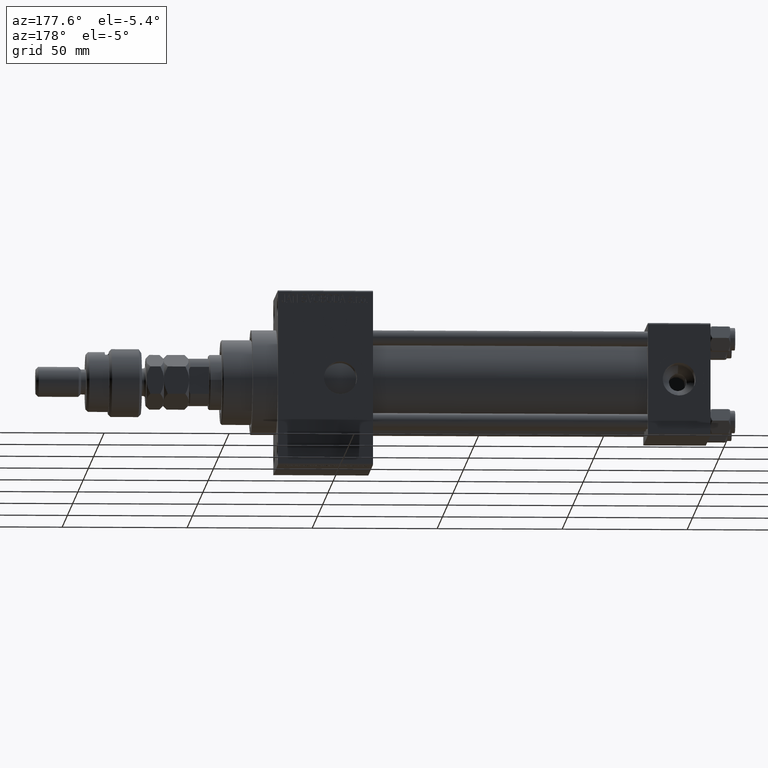
[diagram: clean part render]
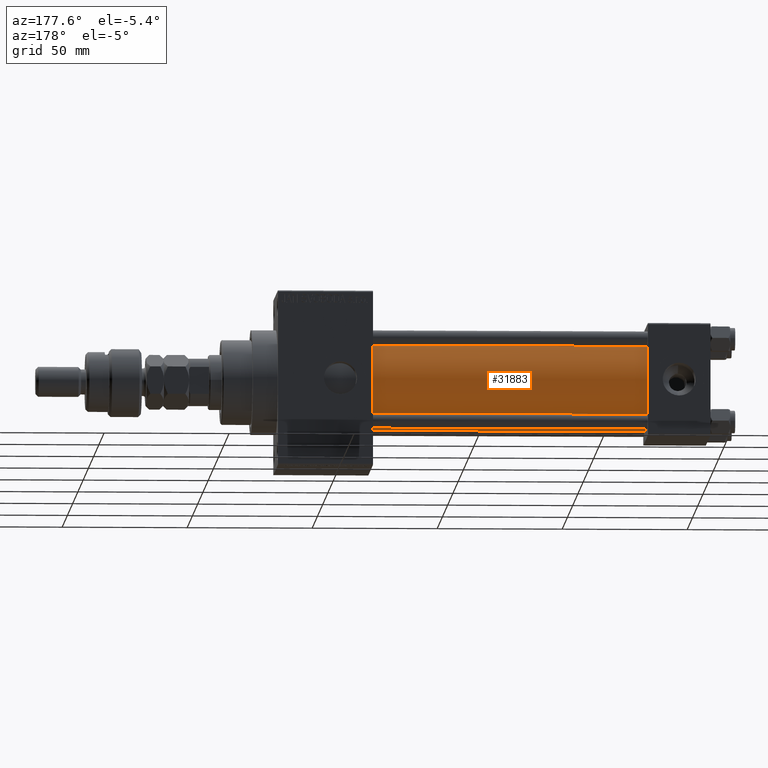
[diagram: same view with one face highlighted and labeled with its STEP entity id]
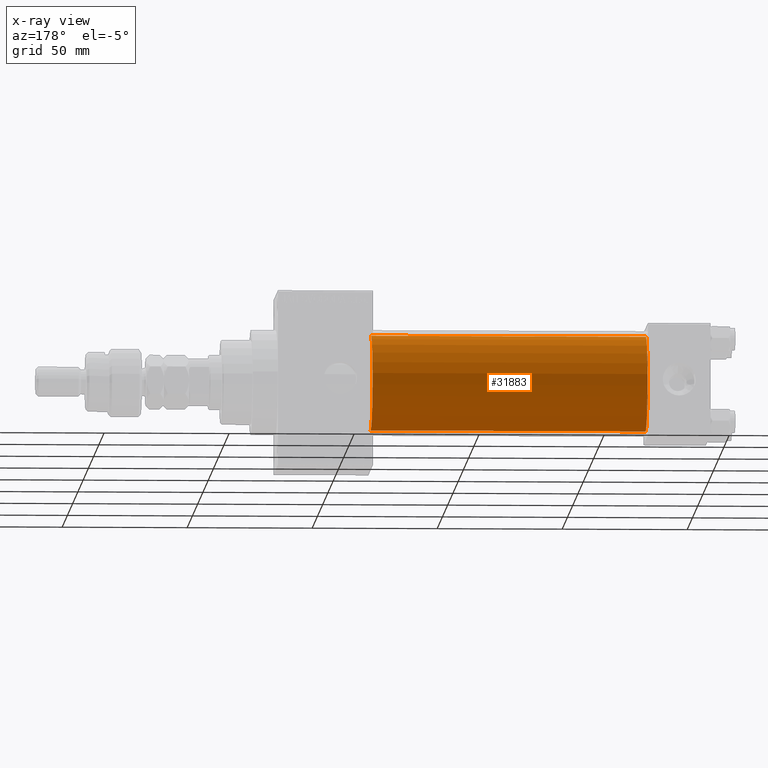
[diagram: x-ray of the same camera — body ghosted, the highlighted face saturated]
A machine part, auxiliary view. The second image highlights one B-rep face of the part: STEP entity #31883.
The next image is the same camera in x-ray: the body ghosted, the highlighted face saturated — about 0% of this face is hidden behind the body in this view.
In plain terms, the highlighted cylindrical surface (partial cylindrical patch) has radius 19 mm, axis along (-1, -0, -0).
Its self-contained STEP definition (entity closure, byte-faithful):
#1760 = DIRECTION ( 'NONE',  ( 0.000000000000000000, 0.000000000000000000, -1.000000000000000000 ) ) ;
#2551 = EDGE_LOOP ( 'NONE', ( #26792, #9759, #8443, #22636 ) ) ;
#3374 = CARTESIAN_POINT ( 'NONE',  ( 24.99999999999999289, -2.602085213965210642E-15, 0.000000000000000000 ) ) ;
#4076 = VECTOR ( 'NONE', #16858, 1000.000000000000000 ) ;
#8008 = CARTESIAN_POINT ( 'NONE',  ( 135.0000000000000000, -2.602085213965210642E-15, 19.00000000000000000 ) ) ;
#8443 = ORIENTED_EDGE ( 'NONE', *, *, #24691, .T. ) ;
#8714 = VERTEX_POINT ( 'NONE', #8008 ) ;
#9631 = CARTESIAN_POINT ( 'NONE',  ( 135.0000000000000000, -2.602085213965210642E-15, 0.000000000000000000 ) ) ;
#9759 = ORIENTED_EDGE ( 'NONE', *, *, #22284, .T. ) ;
#10326 = LINE ( 'NONE', #14784, #41830 ) ;
#12370 = CIRCLE ( 'NONE', #13235, 19.00000000000000000 ) ;
#12636 = DIRECTION ( 'NONE',  ( 0.000000000000000000, 0.000000000000000000, 1.000000000000000000 ) ) ;
#13235 = AXIS2_PLACEMENT_3D ( 'NONE', #3374, #19388, #51435 ) ;
#14784 = CARTESIAN_POINT ( 'NONE',  ( 135.0000000000000000, -2.602085213965210642E-15, 19.00000000000000000 ) ) ;
#16858 = DIRECTION ( 'NONE',  ( -1.000000000000000000, -0.000000000000000000, -0.000000000000000000 ) ) ;
#18793 = CARTESIAN_POINT ( 'NONE',  ( 24.99999999999999289, -2.602085213965210642E-15, 19.00000000000000000 ) ) ;
#19388 = DIRECTION ( 'NONE',  ( 1.000000000000000000, -0.000000000000000000, 0.000000000000000000 ) ) ;
#20801 = LINE ( 'NONE', #29720, #4076 ) ;
#21687 = VERTEX_POINT ( 'NONE', #18793 ) ;
#22100 = EDGE_CURVE ( 'NONE', #8714, #21687, #10326, .T. ) ;
#22284 = EDGE_CURVE ( 'NONE', #30403, #33903, #20801, .T. ) ;
#22636 = ORIENTED_EDGE ( 'NONE', *, *, #22100, .F. ) ;
#23152 = CARTESIAN_POINT ( 'NONE',  ( 135.0000000000000000, -2.602085213965210642E-15, 0.000000000000000000 ) ) ;
#24691 = EDGE_CURVE ( 'NONE', #33903, #21687, #12370, .T. ) ;
#26449 = DIRECTION ( 'NONE',  ( 1.000000000000000000, 0.000000000000000000, 0.000000000000000000 ) ) ;
#26792 = ORIENTED_EDGE ( 'NONE', *, *, #33500, .F. ) ;
#29720 = CARTESIAN_POINT ( 'NONE',  ( 135.0000000000000000, -2.752562955852396712E-16, -19.00000000000000000 ) ) ;
#30403 = VERTEX_POINT ( 'NONE', #45810 ) ;
#31778 = CIRCLE ( 'NONE', #51044, 19.00000000000000000 ) ;
#31883 = ADVANCED_FACE ( 'NONE', ( #43115 ), #47309, .T. ) ;
#33500 = EDGE_CURVE ( 'NONE', #30403, #8714, #31778, .T. ) ;
#33903 = VERTEX_POINT ( 'NONE', #47814 ) ;
#39166 = DIRECTION ( 'NONE',  ( -1.000000000000000000, -0.000000000000000000, -0.000000000000000000 ) ) ;
#41830 = VECTOR ( 'NONE', #46825, 1000.000000000000000 ) ;
#43115 = FACE_OUTER_BOUND ( 'NONE', #2551, .T. ) ;
#45810 = CARTESIAN_POINT ( 'NONE',  ( 135.0000000000000000, -2.752562955852396712E-16, -19.00000000000000000 ) ) ;
#46825 = DIRECTION ( 'NONE',  ( -1.000000000000000000, -0.000000000000000000, -0.000000000000000000 ) ) ;
#47309 = CYLINDRICAL_SURFACE ( 'NONE', #51827, 19.00000000000000000 ) ;
#47814 = CARTESIAN_POINT ( 'NONE',  ( 24.99999999999999289, -2.752562955852396712E-16, -19.00000000000000000 ) ) ;
#51044 = AXIS2_PLACEMENT_3D ( 'NONE', #9631, #26449, #1760 ) ;
#51435 = DIRECTION ( 'NONE',  ( 0.000000000000000000, 0.000000000000000000, 1.000000000000000000 ) ) ;
#51827 = AXIS2_PLACEMENT_3D ( 'NONE', #23152, #39166, #12636 ) ;